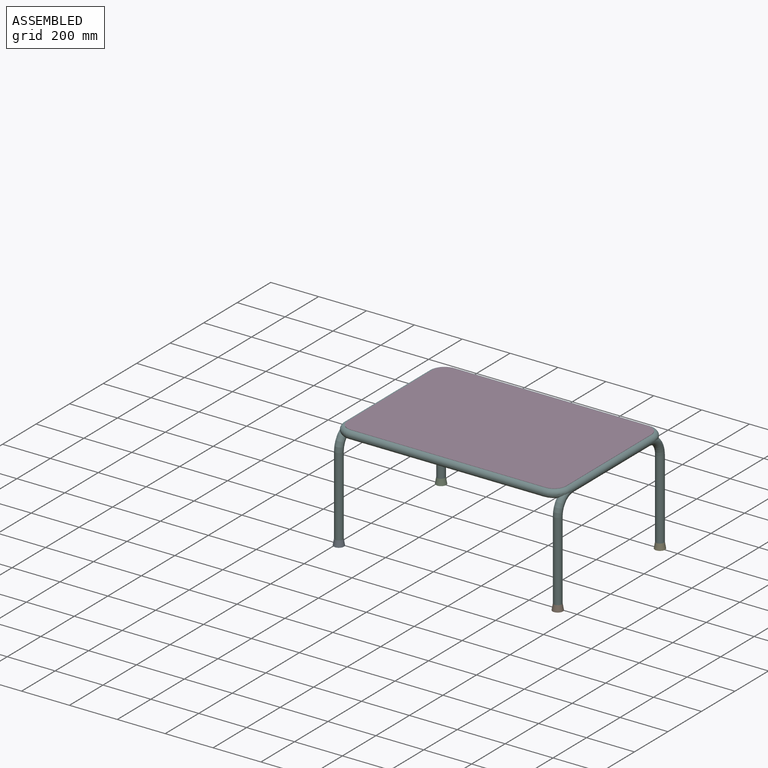
[diagram: assembled view]
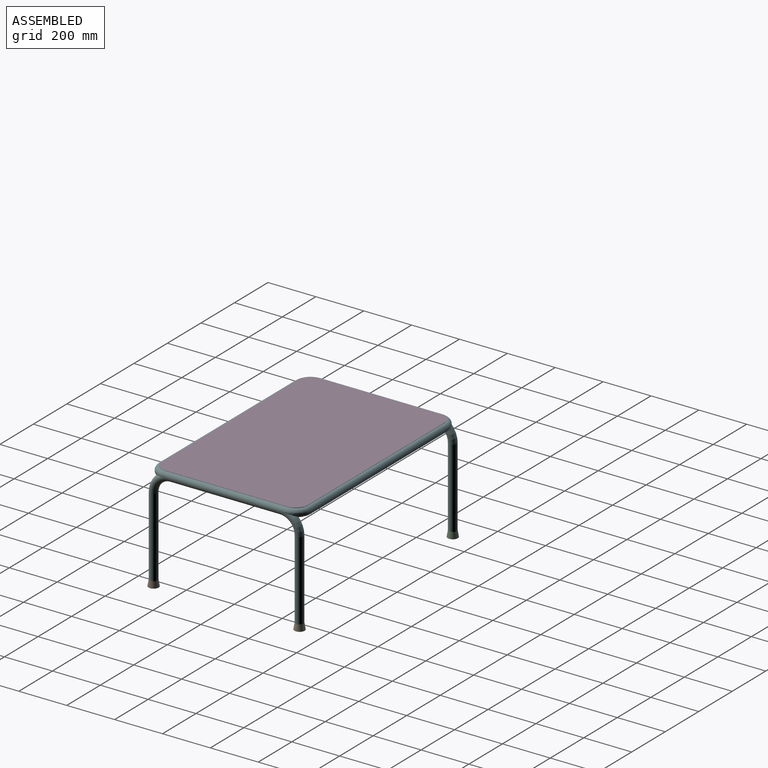
[diagram: assembled view, second angle]
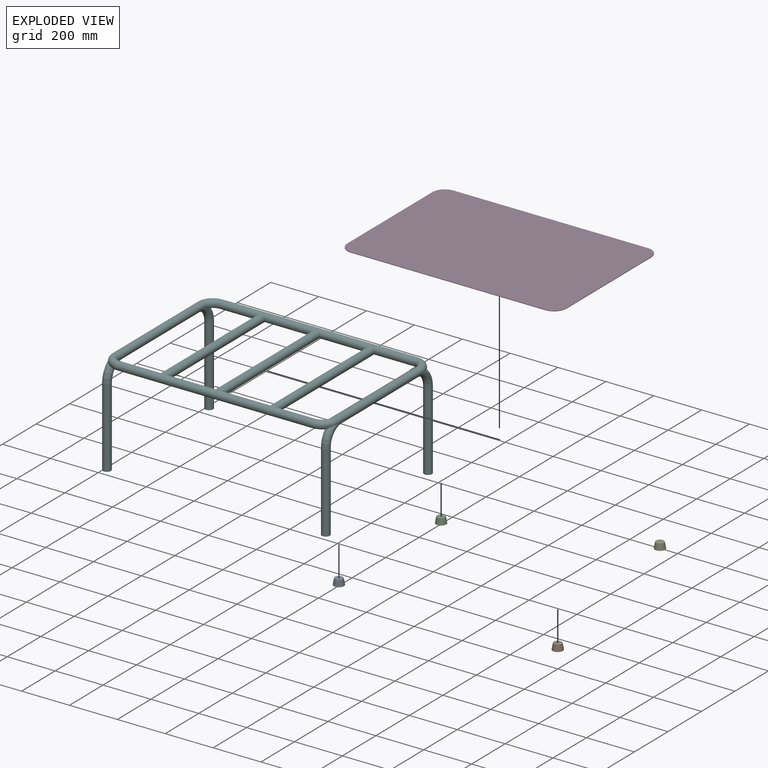
[diagram: exploded view]
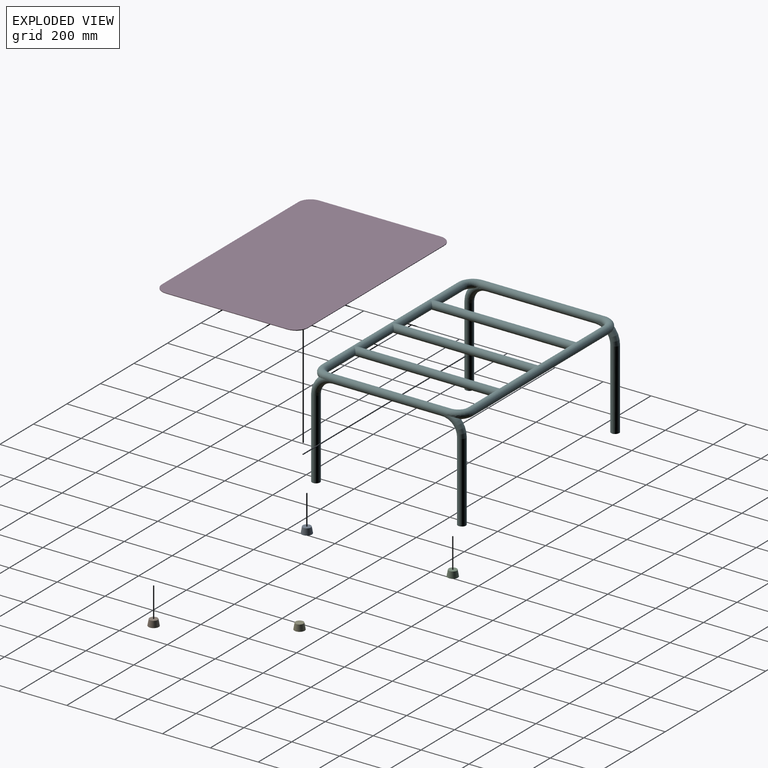
[diagram: exploded view, second angle]
ASSEMBLY  parts=6 mates=5
PART A: 27 faces, bbox 42.6x42.6x25.4 mm
  f0: cone r=19.05mm half-angle=10deg, axis (0,0,-1), area 3087.1mm2, adj f1,f2
  f1: plane 33.62x33.62mm, normal (0,0,1), area 887.8mm2, adj f0
  f2: plane 42.58x42.58mm, normal (0,0,-1), area 319.5mm2, adj f0,f4
  f3: cylinder r=18.11mm len=36.23mm, axis (0,0,-1), area 72.3mm2, adj f5,f6
  f4: cylinder r=18.75mm len=37.5mm, axis (0,0,-1), area 74.8mm2, adj f2,f5
  f5: plane 37.5x37.5mm, normal (0,0,-1), area 73.5mm2, adj f3,f4
  f6: plane 36.23x36.23mm, normal (0,0,-1), area 268.8mm2, adj f3,f8
  f7: cylinder r=14.94mm len=29.88mm, axis (0,0,-1), area 59.6mm2, adj f9,f10
  f8: cylinder r=15.57mm len=31.15mm, axis (0,0,-1), area 62.1mm2, adj f6,f9
  f9: plane 31.15x31.15mm, normal (0,0,-1), area 60.9mm2, adj f7,f8
  f10: plane 29.88x29.88mm, normal (0,0,-1), area 218.2mm2, adj f7,f12
  f11: cylinder r=11.76mm len=23.53mm, axis (0,0,-1), area 46.9mm2, adj f13,f14
  f12: cylinder r=12.4mm len=24.8mm, axis (0,0,-1), area 49.5mm2, adj f10,f13
  f13: plane 24.8x24.8mm, normal (0,0,-1), area 48.2mm2, adj f11,f12
  f14: plane 23.53x23.53mm, normal (0,0,-1), area 167.5mm2, adj f11,f16
  f15: cylinder r=8.59mm len=17.18mm, axis (0,0,-1), area 34.3mm2, adj f17,f18
  f16: cylinder r=9.22mm len=18.45mm, axis (0,0,-1), area 36.8mm2, adj f14,f17
  f17: plane 18.45x18.45mm, normal (0,0,-1), area 35.5mm2, adj f15,f16
  f18: plane 17.18x17.18mm, normal (0,0,-1), area 116.8mm2, adj f15,f20
  f19: cylinder r=5.41mm len=10.83mm, axis (0,0,-1), area 21.6mm2, adj f21,f22
  f20: cylinder r=6.05mm len=12.1mm, axis (0,0,-1), area 24.1mm2, adj f18,f21
  f21: plane 12.1x12.1mm, normal (0,0,-1), area 22.9mm2, adj f19,f20
  f22: plane 10.83x10.83mm, normal (0,0,-1), area 66.1mm2, adj f19,f24
  f23: cylinder r=2.24mm len=4.48mm, axis (0,0,-1), area 8.9mm2, adj f25,f26
  f24: cylinder r=2.87mm len=5.75mm, axis (0,0,-1), area 11.5mm2, adj f22,f25
  f25: plane 5.75x5.75mm, normal (0,0,-1), area 10.2mm2, adj f23,f24
  f26: plane 4.48x4.48mm, normal (0,0,-1), area 15.8mm2, adj f23
PART B: 27 faces, bbox 42.6x42.6x25.4 mm
  f0: cone r=19.05mm half-angle=10deg, axis (0,0,-1), area 3087.1mm2, adj f1,f2
  f1: plane 33.62x33.62mm, normal (0,0,1), area 887.8mm2, adj f0
  f2: plane 42.58x42.58mm, normal (0,0,-1), area 319.5mm2, adj f0,f4
  f3: cylinder r=18.11mm len=36.23mm, axis (0,0,-1), area 72.3mm2, adj f5,f6
  f4: cylinder r=18.75mm len=37.5mm, axis (0,0,-1), area 74.8mm2, adj f2,f5
  f5: plane 37.5x37.5mm, normal (0,0,-1), area 73.5mm2, adj f3,f4
  f6: plane 36.23x36.23mm, normal (0,0,-1), area 268.8mm2, adj f3,f8
  f7: cylinder r=14.94mm len=29.88mm, axis (0,0,-1), area 59.6mm2, adj f9,f10
  f8: cylinder r=15.57mm len=31.15mm, axis (0,0,-1), area 62.1mm2, adj f6,f9
  f9: plane 31.15x31.15mm, normal (0,0,-1), area 60.9mm2, adj f7,f8
  f10: plane 29.88x29.88mm, normal (0,0,-1), area 218.2mm2, adj f7,f12
  f11: cylinder r=11.76mm len=23.53mm, axis (0,0,-1), area 46.9mm2, adj f13,f14
  f12: cylinder r=12.4mm len=24.8mm, axis (0,0,-1), area 49.5mm2, adj f10,f13
  f13: plane 24.8x24.8mm, normal (0,0,-1), area 48.2mm2, adj f11,f12
  f14: plane 23.53x23.53mm, normal (0,0,-1), area 167.5mm2, adj f11,f16
  f15: cylinder r=8.59mm len=17.18mm, axis (0,0,-1), area 34.3mm2, adj f17,f18
  f16: cylinder r=9.22mm len=18.45mm, axis (0,0,-1), area 36.8mm2, adj f14,f17
  f17: plane 18.45x18.45mm, normal (0,0,-1), area 35.5mm2, adj f15,f16
  f18: plane 17.18x17.18mm, normal (0,0,-1), area 116.8mm2, adj f15,f20
  f19: cylinder r=5.41mm len=10.83mm, axis (0,0,-1), area 21.6mm2, adj f21,f22
  f20: cylinder r=6.05mm len=12.1mm, axis (0,0,-1), area 24.1mm2, adj f18,f21
  f21: plane 12.1x12.1mm, normal (0,0,-1), area 22.9mm2, adj f19,f20
  f22: plane 10.83x10.83mm, normal (0,0,-1), area 66.1mm2, adj f19,f24
  f23: cylinder r=2.24mm len=4.48mm, axis (0,0,-1), area 8.9mm2, adj f25,f26
  f24: cylinder r=2.87mm len=5.75mm, axis (0,0,-1), area 11.5mm2, adj f22,f25
  f25: plane 5.75x5.75mm, normal (0,0,-1), area 10.2mm2, adj f23,f24
  f26: plane 4.48x4.48mm, normal (0,0,-1), area 15.8mm2, adj f23
PART C: 27 faces, bbox 42.6x42.6x25.4 mm
  f0: cone r=19.05mm half-angle=10deg, axis (0,0,-1), area 3087.1mm2, adj f1,f2
  f1: plane 33.62x33.62mm, normal (0,0,1), area 887.8mm2, adj f0
  f2: plane 42.58x42.58mm, normal (0,0,-1), area 319.5mm2, adj f0,f4
  f3: cylinder r=18.11mm len=36.23mm, axis (0,0,-1), area 72.3mm2, adj f5,f6
  f4: cylinder r=18.75mm len=37.5mm, axis (0,0,-1), area 74.8mm2, adj f2,f5
  f5: plane 37.5x37.5mm, normal (0,0,-1), area 73.5mm2, adj f3,f4
  f6: plane 36.23x36.23mm, normal (0,0,-1), area 268.8mm2, adj f3,f8
  f7: cylinder r=14.94mm len=29.88mm, axis (0,0,-1), area 59.6mm2, adj f9,f10
  f8: cylinder r=15.57mm len=31.15mm, axis (0,0,-1), area 62.1mm2, adj f6,f9
  f9: plane 31.15x31.15mm, normal (0,0,-1), area 60.9mm2, adj f7,f8
  f10: plane 29.88x29.88mm, normal (0,0,-1), area 218.2mm2, adj f7,f12
  f11: cylinder r=11.76mm len=23.53mm, axis (0,0,-1), area 46.9mm2, adj f13,f14
  f12: cylinder r=12.4mm len=24.8mm, axis (0,0,-1), area 49.5mm2, adj f10,f13
  f13: plane 24.8x24.8mm, normal (0,0,-1), area 48.2mm2, adj f11,f12
  f14: plane 23.53x23.53mm, normal (0,0,-1), area 167.5mm2, adj f11,f16
  f15: cylinder r=8.59mm len=17.18mm, axis (0,0,-1), area 34.3mm2, adj f17,f18
  f16: cylinder r=9.22mm len=18.45mm, axis (0,0,-1), area 36.8mm2, adj f14,f17
  f17: plane 18.45x18.45mm, normal (0,0,-1), area 35.5mm2, adj f15,f16
  f18: plane 17.18x17.18mm, normal (0,0,-1), area 116.8mm2, adj f15,f20
  f19: cylinder r=5.41mm len=10.83mm, axis (0,0,-1), area 21.6mm2, adj f21,f22
  f20: cylinder r=6.05mm len=12.1mm, axis (0,0,-1), area 24.1mm2, adj f18,f21
  f21: plane 12.1x12.1mm, normal (0,0,-1), area 22.9mm2, adj f19,f20
  f22: plane 10.83x10.83mm, normal (0,0,-1), area 66.1mm2, adj f19,f24
  f23: cylinder r=2.24mm len=4.48mm, axis (0,0,-1), area 8.9mm2, adj f25,f26
  f24: cylinder r=2.87mm len=5.75mm, axis (0,0,-1), area 11.5mm2, adj f22,f25
  f25: plane 5.75x5.75mm, normal (0,0,-1), area 10.2mm2, adj f23,f24
  f26: plane 4.48x4.48mm, normal (0,0,-1), area 15.8mm2, adj f23
PART D: 10 faces, bbox 914.4x609.6x2.5 mm
  f0: plane 508x2.54mm, normal (-1,0,0), area 1290.3mm2, adj f1,f7,f8,f9
  f1: cylinder r=50.8mm len=50.8mm, axis (0,0,-1), area 202.7mm2, adj f0,f2,f8,f9
  f2: plane 812.8x2.54mm, normal (0,-1,0), area 2064.5mm2, adj f1,f3,f8,f9
  f3: cylinder r=50.8mm len=50.8mm, axis (0,0,-1), area 202.7mm2, adj f2,f4,f8,f9
  f4: plane 508x2.54mm, normal (1,0,0), area 1290.3mm2, adj f3,f5,f8,f9
  f5: cylinder r=50.8mm len=50.8mm, axis (0,0,-1), area 202.7mm2, adj f4,f6,f8,f9
  f6: plane 812.8x2.54mm, normal (0,1,0), area 2064.5mm2, adj f5,f7,f8,f9
  f7: cylinder r=50.8mm len=50.8mm, axis (0,0,-1), area 202.7mm2, adj f0,f6,f8,f9
  f8: plane 914.4x609.6mm, normal (0,0,1), area 555203mm2, adj f0,f1,f2,f3,f4,f5,f6,f7
  f9: plane 914.4x609.6mm, normal (0,0,-1), area 555203mm2, adj f0,f1,f2,f3,f4,f5,f6,f7
PART E: 27 faces, bbox 42.6x42.6x25.4 mm
  f0: cone r=19.05mm half-angle=10deg, axis (0,0,-1), area 3087.1mm2, adj f1,f2
  f1: plane 33.62x33.62mm, normal (0,0,1), area 887.8mm2, adj f0
  f2: plane 42.58x42.58mm, normal (0,0,-1), area 319.5mm2, adj f0,f4
  f3: cylinder r=18.11mm len=36.23mm, axis (0,0,-1), area 72.3mm2, adj f5,f6
  f4: cylinder r=18.75mm len=37.5mm, axis (0,0,-1), area 74.8mm2, adj f2,f5
  f5: plane 37.5x37.5mm, normal (0,0,-1), area 73.5mm2, adj f3,f4
  f6: plane 36.23x36.23mm, normal (0,0,-1), area 268.8mm2, adj f3,f8
  f7: cylinder r=14.94mm len=29.88mm, axis (0,0,-1), area 59.6mm2, adj f9,f10
  f8: cylinder r=15.57mm len=31.15mm, axis (0,0,-1), area 62.1mm2, adj f6,f9
  f9: plane 31.15x31.15mm, normal (0,0,-1), area 60.9mm2, adj f7,f8
  f10: plane 29.88x29.88mm, normal (0,0,-1), area 218.2mm2, adj f7,f12
  f11: cylinder r=11.76mm len=23.53mm, axis (0,0,-1), area 46.9mm2, adj f13,f14
  f12: cylinder r=12.4mm len=24.8mm, axis (0,0,-1), area 49.5mm2, adj f10,f13
  f13: plane 24.8x24.8mm, normal (0,0,-1), area 48.2mm2, adj f11,f12
  f14: plane 23.53x23.53mm, normal (0,0,-1), area 167.5mm2, adj f11,f16
  f15: cylinder r=8.59mm len=17.18mm, axis (0,0,-1), area 34.3mm2, adj f17,f18
  f16: cylinder r=9.22mm len=18.45mm, axis (0,0,-1), area 36.8mm2, adj f14,f17
  f17: plane 18.45x18.45mm, normal (0,0,-1), area 35.5mm2, adj f15,f16
  f18: plane 17.18x17.18mm, normal (0,0,-1), area 116.8mm2, adj f15,f20
  f19: cylinder r=5.41mm len=10.83mm, axis (0,0,-1), area 21.6mm2, adj f21,f22
  f20: cylinder r=6.05mm len=12.1mm, axis (0,0,-1), area 24.1mm2, adj f18,f21
  f21: plane 12.1x12.1mm, normal (0,0,-1), area 22.9mm2, adj f19,f20
  f22: plane 10.83x10.83mm, normal (0,0,-1), area 66.1mm2, adj f19,f24
  f23: cylinder r=2.24mm len=4.48mm, axis (0,0,-1), area 8.9mm2, adj f25,f26
  f24: cylinder r=2.87mm len=5.75mm, axis (0,0,-1), area 11.5mm2, adj f22,f25
  f25: plane 5.75x5.75mm, normal (0,0,-1), area 10.2mm2, adj f23,f24
  f26: plane 4.48x4.48mm, normal (0,0,-1), area 15.8mm2, adj f23
PART F: 118 faces, bbox 958.9x658.3x430.8 mm
  f0: cylinder r=16.7mm len=812.8mm, axis (-1,0,0), area 81942.1mm2, adj f29,f30,f31,f40,f41
  f1: torus R=50.8mm, axis (0,0,1), area 974.8mm2, adj f34,f39
  f2: cylinder r=16.7mm len=508mm, axis (0,1,0), area 50676.2mm2, adj f3,f4,f9,f32,f35,f40
  f3: cylinder r=16.7mm len=25.4mm, axis (0,1,0), area 17.9mm2, adj f2,f35,f40
  f4: cylinder r=16.7mm len=25.4mm, axis (0,1,0), area 17.9mm2, adj f2,f9,f32
  f5: torus R=50.8mm, axis (0,0,1), area 974.8mm2, adj f10,f33
  f6: cylinder r=16.7mm len=330.2mm, axis (0,0,-1), area 34648.7mm2, adj f7,f9
  f7: plane 33.4x33.4mm, normal (0,0,-1), area 318.6mm2, adj f6,f8
  f8: cylinder r=13.32mm len=330.2mm, axis (0,0,-1), area 27639.9mm2, adj f7,f10
  f9: torus R=76.2mm, axis (1,0,0), area 9531.2mm2, adj f2,f4,f6,f32
  f10: torus R=76.2mm, axis (1,0,0), area 6413.9mm2, adj f5,f8,f33
  f11: cylinder r=16.7mm len=812.8mm, axis (1,0,0), area 81942.1mm2, adj f28,f29,f30,f31,f32
  f12: torus R=50.8mm, axis (0,0,1), area 975.4mm2, adj f14,f18
  f13: cylinder r=16.7mm len=21.45mm, axis (0,-1,0), area 83.1mm2, adj f23,f42
  f14: cylinder r=16.7mm len=21.45mm, axis (0,-1,0), area 83.1mm2, adj f12,f18
  f15: cylinder r=16.7mm len=508mm, axis (0,-1,0), area 50676.2mm2, adj f16,f17,f19,f24,f28,f41
  f16: cylinder r=16.7mm len=25.4mm, axis (0,-1,0), area 17.9mm2, adj f15,f24,f41
  f17: cylinder r=16.7mm len=25.4mm, axis (0,-1,0), area 17.9mm2, adj f15,f19,f28
  f18: torus R=76.2mm, axis (-1,0,0), area 6414.9mm2, adj f12,f14,f20
  f19: torus R=76.2mm, axis (-1,0,0), area 9529.1mm2, adj f15,f17,f22,f28
  f20: cylinder r=13.32mm len=330.2mm, axis (0,0,1), area 27639.9mm2, adj f18,f21
  f21: plane 33.4x33.4mm, normal (0,0,-1), area 318.6mm2, adj f20,f22
  f22: cylinder r=16.7mm len=330.2mm, axis (0,0,1), area 34648.7mm2, adj f19,f21
  f23: torus R=76.2mm, axis (-1,0,0), area 6414.6mm2, adj f13,f25,f42
  f24: torus R=76.2mm, axis (-1,0,0), area 9532.3mm2, adj f15,f16,f27,f41
  f25: cylinder r=13.32mm len=330.2mm, axis (0,0,-1), area 27639.9mm2, adj f23,f26
  f26: plane 33.4x33.4mm, normal (0,0,-1), area 318.6mm2, adj f25,f27
  f27: cylinder r=16.7mm len=330.2mm, axis (0,0,-1), area 34648.7mm2, adj f24,f26
  f28: torus R=50.8mm, axis (0,0,1), area 6907mm2, adj f11,f15,f17,f19
  f29: cylinder r=16.7mm len=609.6mm, axis (0,-1,0), area 61735.5mm2, adj f0,f11
  f30: cylinder r=16.7mm len=609.6mm, axis (0,-1,0), area 61735.5mm2, adj f0,f11
  f31: cylinder r=16.7mm len=609.6mm, axis (0,-1,0), area 61735.5mm2, adj f0,f11
  f32: torus R=50.8mm, axis (0,0,1), area 6905.9mm2, adj f2,f4,f9,f11
  f33: cylinder r=16.7mm len=21.45mm, axis (0,1,0), area 83.1mm2, adj f5,f10
  f34: torus R=76.2mm, axis (1,0,0), area 6414.1mm2, adj f1,f36,f39
  f35: torus R=76.2mm, axis (1,0,0), area 9531mm2, adj f2,f3,f38,f40
  f36: cylinder r=13.32mm len=330.2mm, axis (0,0,1), area 27639.9mm2, adj f34,f37
  f37: plane 33.4x33.4mm, normal (0,0,-1), area 318.6mm2, adj f36,f38
  f38: cylinder r=16.7mm len=330.2mm, axis (0,0,1), area 34648.7mm2, adj f35,f37
  f39: cylinder r=16.7mm len=21.45mm, axis (0,1,0), area 83.1mm2, adj f1,f34
  f40: torus R=50.8mm, axis (0,0,1), area 6906mm2, adj f0,f2,f3,f35
  f41: torus R=50.8mm, axis (0,0,1), area 6905.3mm2, adj f0,f15,f16,f24
  f42: torus R=50.8mm, axis (0,0,1), area 974.9mm2, adj f13,f23
  f43: torus R=50.8mm, axis (0,0,1), area 956.8mm2, adj f44,f46
  f44: torus R=76.2mm, axis (-1,0,0), area 2138.5mm2, adj f43,f46
  f45: torus R=76.2mm, axis (-1,0,0), area 2138.1mm2, adj f46,f47
  f46: cylinder r=13.32mm len=508mm, axis (0,-1,0), area 40324.9mm2, adj f43,f44,f45,f47
  f47: torus R=50.8mm, axis (0,0,1), area 954.9mm2, adj f45,f46
  f48: torus R=76.2mm, axis (-1,0,0), area 1141.5mm2, adj f49,f50
  f49: cylinder r=13.32mm len=9.59mm, axis (0,-1,0), area 3.8mm2, adj f48,f50
  f50: torus R=50.8mm, axis (0,0,1), area 5219.3mm2, adj f48,f49,f75
  f51: cylinder r=13.32mm len=26.74mm, axis (-1,0,0), area 709.9mm2, adj f56,f57
  f52: cylinder r=13.32mm len=26.74mm, axis (-1,0,0), area 709.9mm2, adj f58,f59
  f53: cylinder r=13.32mm len=26.74mm, axis (-1,0,0), area 709.9mm2, adj f60,f61
  f54: cylinder r=13.32mm len=9.59mm, axis (0,1,0), area 3.8mm2, adj f55,f62
  f55: torus R=76.2mm, axis (1,0,0), area 1141.9mm2, adj f54,f62
  f56: cylinder r=13.32mm len=26.64mm, axis (0,-1,0), area 355mm2, adj f51,f65
  f57: cylinder r=13.32mm len=26.64mm, axis (0,-1,0), area 355mm2, adj f51,f66
  f58: cylinder r=13.32mm len=26.64mm, axis (0,-1,0), area 355mm2, adj f52,f69
  f59: cylinder r=13.32mm len=26.64mm, axis (0,-1,0), area 355mm2, adj f52,f70
  f60: cylinder r=13.32mm len=26.64mm, axis (0,-1,0), area 355mm2, adj f53,f73
  f61: cylinder r=13.32mm len=26.64mm, axis (0,-1,0), area 355mm2, adj f53,f74
  f62: torus R=50.8mm, axis (0,0,1), area 5219.6mm2, adj f54,f55,f75
  f63: cylinder r=16.7mm len=26.64mm, axis (0,-1,0), area 309.2mm2, adj f66,f75
  f64: cylinder r=16.7mm len=26.64mm, axis (0,-1,0), area 309.2mm2, adj f65,f75
  f65: plane 26.64x16.7mm, normal (0,1,0), area 112.9mm2, adj f56,f64,f75
  f66: plane 26.64x16.7mm, normal (0,1,0), area 112.9mm2, adj f57,f63,f75
  f67: cylinder r=16.7mm len=26.64mm, axis (0,-1,0), area 309.2mm2, adj f70,f75
  f68: cylinder r=16.7mm len=26.64mm, axis (0,-1,0), area 309.2mm2, adj f69,f75
  f69: plane 26.64x16.7mm, normal (0,1,0), area 112.9mm2, adj f58,f68,f75
  f70: plane 26.64x16.7mm, normal (0,1,0), area 112.9mm2, adj f59,f67,f75
  f71: cylinder r=16.7mm len=26.64mm, axis (0,-1,0), area 309.2mm2, adj f74,f75
  f72: cylinder r=16.7mm len=26.64mm, axis (0,-1,0), area 309.2mm2, adj f73,f75
  f73: plane 26.64x16.7mm, normal (0,1,0), area 112.9mm2, adj f60,f72,f75
  f74: plane 26.64x16.7mm, normal (0,1,0), area 112.9mm2, adj f61,f71,f75
  f75: cylinder r=13.32mm len=812.8mm, axis (-1,0,0), area 64623.5mm2, adj f50,f62,f63,f64,f65,f66,f67,f68
  f76: cylinder r=16.7mm len=26.65mm, axis (1,0,0), area 618.5mm2, adj f77
  f77: cylinder r=13.32mm len=589.46mm, axis (0,-1,0), area 48752.1mm2, adj f76,f78
  f78: cylinder r=16.7mm len=26.65mm, axis (-1,0,0), area 618.6mm2, adj f77
  f79: cylinder r=16.7mm len=26.65mm, axis (1,0,0), area 618.5mm2, adj f80
  f80: cylinder r=13.32mm len=589.46mm, axis (0,-1,0), area 48752.1mm2, adj f79,f81
  f81: cylinder r=16.7mm len=26.65mm, axis (-1,0,0), area 618.6mm2, adj f80
  f82: cylinder r=16.7mm len=26.65mm, axis (1,0,0), area 618.5mm2, adj f83
  f83: cylinder r=13.32mm len=589.46mm, axis (0,-1,0), area 48752.1mm2, adj f82,f84
  f84: cylinder r=16.7mm len=26.65mm, axis (-1,0,0), area 618.6mm2, adj f83
  f85: torus R=76.2mm, axis (1,0,0), area 2138.5mm2, adj f88,f89
  f86: torus R=50.8mm, axis (0,0,1), area 954.9mm2, adj f87,f88
  f87: torus R=76.2mm, axis (1,0,0), area 2138.1mm2, adj f86,f88
  f88: cylinder r=13.32mm len=508mm, axis (0,1,0), area 40324.9mm2, adj f85,f86,f87,f89
  f89: torus R=50.8mm, axis (0,0,1), area 956.8mm2, adj f85,f88
  f90: cylinder r=13.32mm len=26.74mm, axis (1,0,0), area 709.9mm2, adj f93,f94
  f91: cylinder r=13.32mm len=26.74mm, axis (1,0,0), area 709.9mm2, adj f95,f96
  f92: cylinder r=13.32mm len=26.74mm, axis (1,0,0), area 709.9mm2, adj f97,f98
  f93: cylinder r=13.32mm len=26.64mm, axis (0,-1,0), area 355mm2, adj f90,f103
  f94: cylinder r=13.32mm len=26.64mm, axis (0,-1,0), area 355mm2, adj f90,f104
  f95: cylinder r=13.32mm len=26.64mm, axis (0,-1,0), area 355mm2, adj f91,f107
  f96: cylinder r=13.32mm len=26.64mm, axis (0,-1,0), area 355mm2, adj f91,f108
  f97: cylinder r=13.32mm len=26.64mm, axis (0,-1,0), area 355mm2, adj f92,f111
  f98: cylinder r=13.32mm len=26.64mm, axis (0,-1,0), area 355mm2, adj f92,f112
  f99: cylinder r=13.32mm len=9.59mm, axis (0,-1,0), area 3.8mm2, adj f100,f113
  f100: torus R=76.2mm, axis (-1,0,0), area 1141.9mm2, adj f99,f113
  f101: cylinder r=16.7mm len=26.64mm, axis (0,-1,0), area 309.3mm2, adj f104,f114
  f102: cylinder r=16.7mm len=26.64mm, axis (0,-1,0), area 309.3mm2, adj f103,f114
  f103: plane 26.64x16.7mm, normal (0,-1,0), area 112.9mm2, adj f93,f102,f114
  f104: plane 26.64x16.7mm, normal (0,-1,0), area 112.9mm2, adj f94,f101,f114
  f105: cylinder r=16.7mm len=26.64mm, axis (0,-1,0), area 309.3mm2, adj f108,f114
  f106: cylinder r=16.7mm len=26.64mm, axis (0,-1,0), area 309.3mm2, adj f107,f114
  f107: plane 26.64x16.7mm, normal (0,-1,0), area 112.9mm2, adj f95,f106,f114
  f108: plane 26.64x16.7mm, normal (0,-1,0), area 112.9mm2, adj f96,f105,f114
  f109: cylinder r=16.7mm len=26.64mm, axis (0,-1,0), area 309.3mm2, adj f112,f114
  f110: cylinder r=16.7mm len=26.64mm, axis (0,-1,0), area 309.3mm2, adj f111,f114
  f111: plane 26.64x16.7mm, normal (0,-1,0), area 112.9mm2, adj f97,f110,f114
  f112: plane 26.64x16.7mm, normal (0,-1,0), area 112.9mm2, adj f98,f109,f114
  f113: torus R=50.8mm, axis (0,0,1), area 5219.6mm2, adj f99,f100,f114
  f114: cylinder r=13.32mm len=812.8mm, axis (1,0,0), area 64623.5mm2, adj f101,f102,f103,f104,f105,f106,f107,f108
  f115: torus R=76.2mm, axis (1,0,0), area 1141.5mm2, adj f116,f117
  f116: torus R=50.8mm, axis (0,0,1), area 5219.3mm2, adj f114,f115,f117
  f117: cylinder r=13.32mm len=9.59mm, axis (0,1,0), area 3.8mm2, adj f115,f116
PLACE A t=(75.52,-1344.15,8.09)mm
PLACE B t=(75.52,-1344.15,8.09)mm
PLACE C t=(75.52,-1344.15,8.09)mm
PLACE D t=(75.52,-1344.15,20.79)mm
PLACE E t=(75.52,-1344.15,8.09)mm
PLACE F t=(75.52,-1344.15,20.79)mm fixed
MATE planar F.f12 <-> D.f1  axis (0,0,1) through (-330.88,-53.39,430.36)mm
MATE fastened B.f0 <-> F.f6  axis (0,0,1) through (532.72,-104.19,23.96)mm
MATE fastened E.f0 <-> F.f36  axis (0,0,1) through (532.72,505.41,23.96)mm
MATE fastened C.f3 <-> F.f25  axis (0,0,1) through (-381.68,505.41,23.96)mm
MATE fastened A.f3 <-> F.f20  axis (0,0,1) through (-381.68,-104.19,23.96)mm
